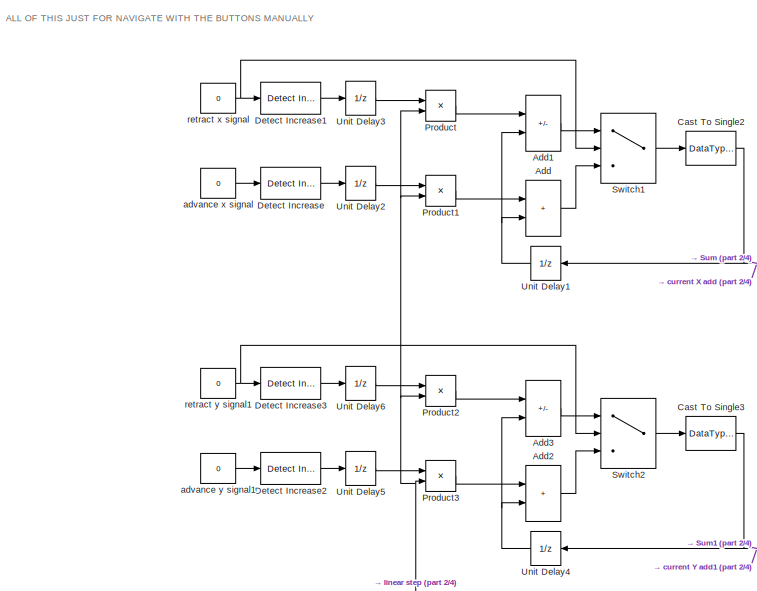
[diagram: root canvas - part 1/4, top left region]
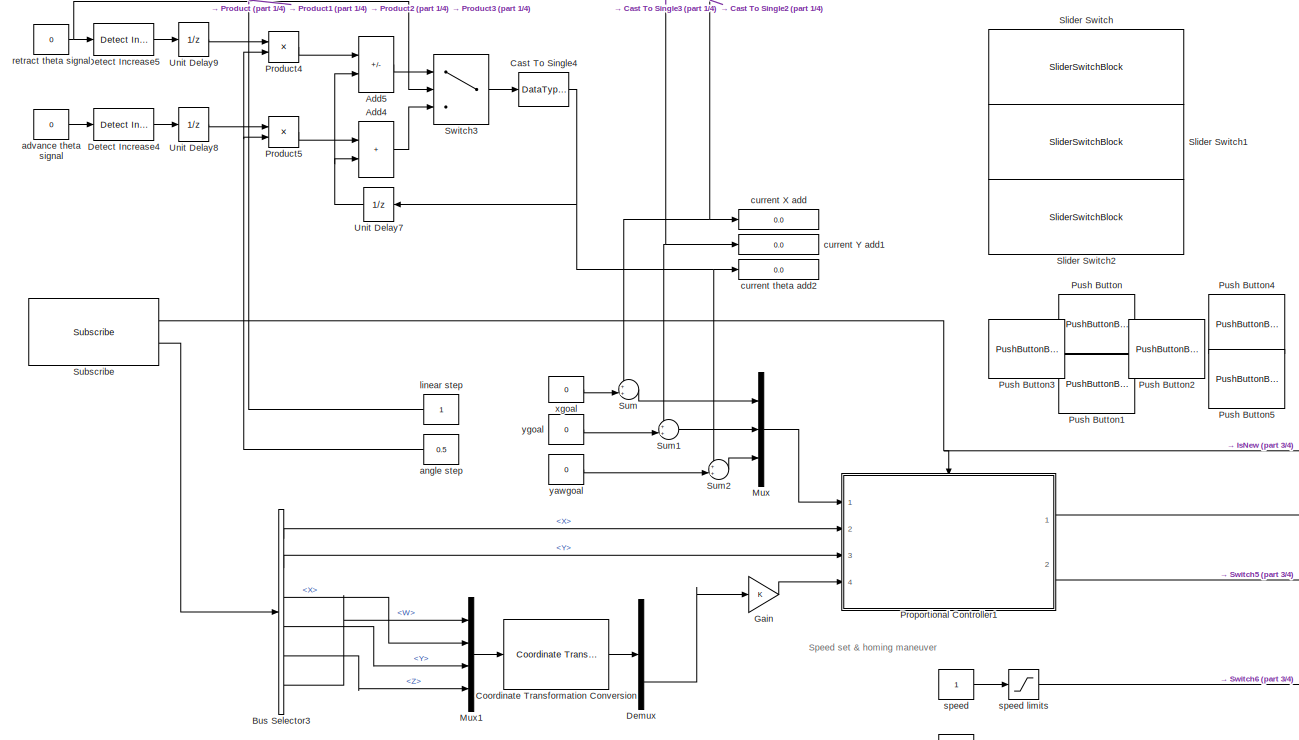
[diagram: root canvas - part 2/4, central region]
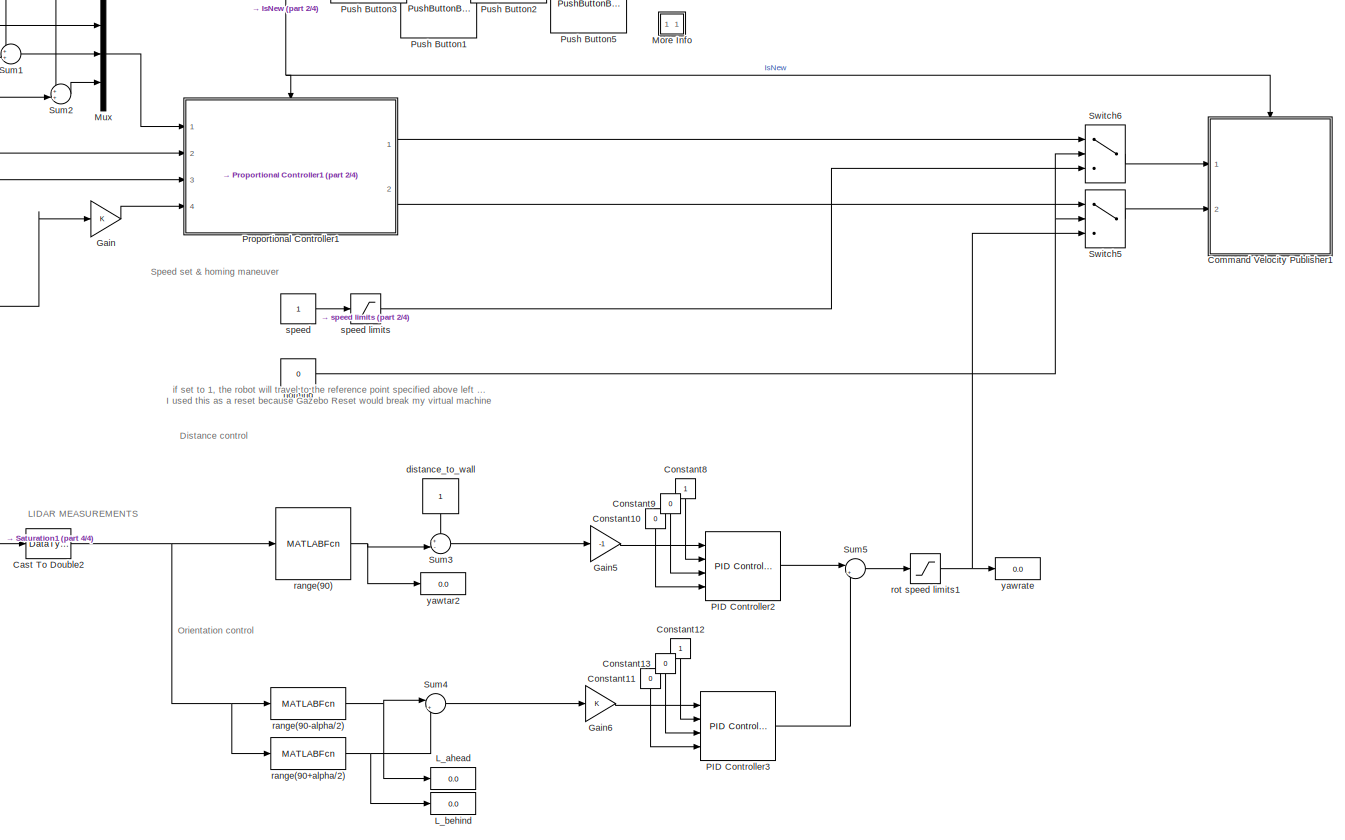
[diagram: root canvas - part 3/4, bottom right region]
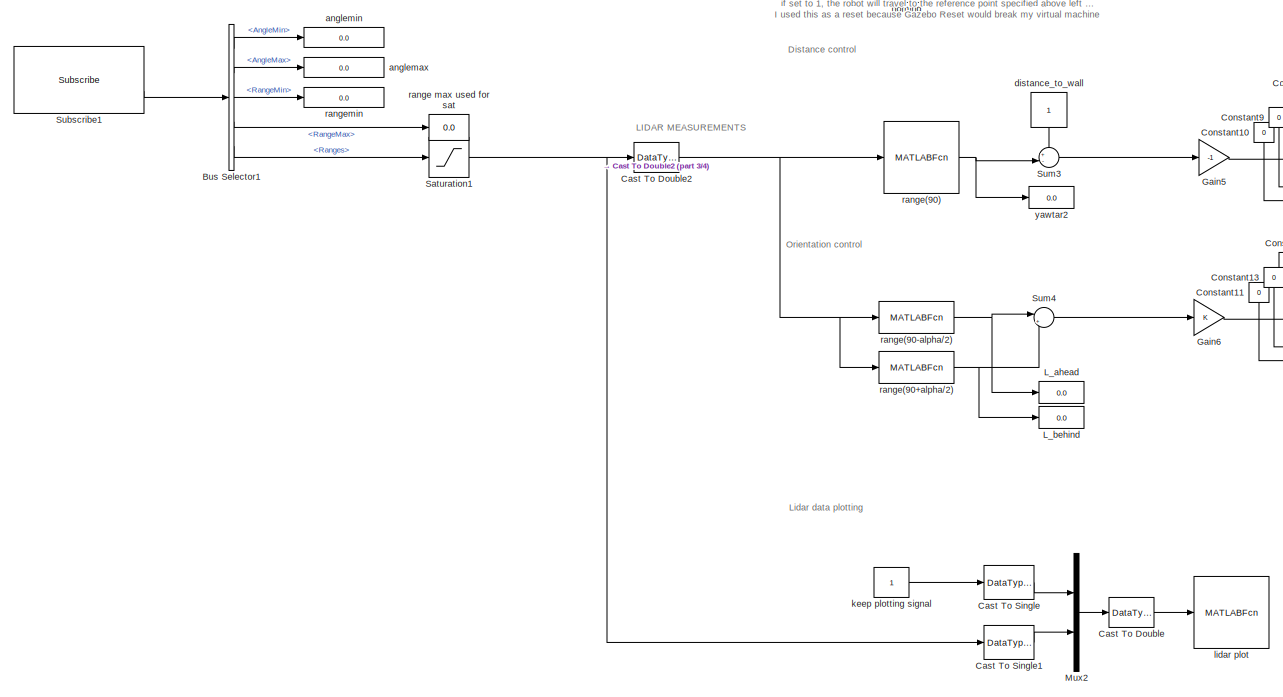
[diagram: root canvas - part 4/4, bottom center region]
MODEL slx_7248342cb240
KIND model
CONFIG AbsTol = auto
CONFIG EnableMultiTasking = off
CONFIG FixedStep = auto
CONFIG MaxStep = auto
CONFIG MinStep = auto
CONFIG RelTol = 1e-3
CONFIG SampleTimeConstraint = Unconstrained
CONFIG Solver = FixedStepAuto
CONFIG SolverName = FixedStepAuto
CONFIG StartTime = 0.0
CONFIG StopTime = inf
WORKSPACE source: mxarray member
WORKSPACE SL_ROS_VariableLengthArrays_MaxSizes: object (value not decoded)
BLOCK [Sum] Add
  IconShape = rectangular
  Ports = [2, 1]
BLOCK [Sum] Add1
  IconShape = rectangular
  Inputs = -+
  Ports = [2, 1]
BLOCK [Sum] Add2
  IconShape = rectangular
  Ports = [2, 1]
BLOCK [Sum] Add3
  IconShape = rectangular
  Inputs = -+
  Ports = [2, 1]
BLOCK [Sum] Add4
  IconShape = rectangular
  Ports = [2, 1]
BLOCK [Sum] Add5
  IconShape = rectangular
  Inputs = -+
  Ports = [2, 1]
BLOCK [BusSelector] Bus Selector1
  OutputSignals = AngleMin,AngleMax,RangeMin,RangeMax,Ranges
  Ports = [1, 5]
BLOCK [BusSelector] Bus Selector3
  OutputSignals = Pose.Pose.Position.X,Pose.Pose.Position.Y,Pose.Pose.Orientation.X,Pose.Pose.Orientation.Y,Pose.Pose.Orientation.Z,Pose.Pose.Orientation.W
  Ports = [1, 6]
BLOCK [DataTypeConversion] Cast To Double
  OutDataTypeStr = double
  RndMeth = Floor
  SaturateOnIntegerOverflow = off
BLOCK [DataTypeConversion] Cast To Double2
  OutDataTypeStr = double
  RndMeth = Floor
  SaturateOnIntegerOverflow = off
BLOCK [DataTypeConversion] Cast To Single
  OutDataTypeStr = single
  RndMeth = Floor
  SaturateOnIntegerOverflow = off
BLOCK [DataTypeConversion] Cast To Single1
  OutDataTypeStr = single
  RndMeth = Floor
  SaturateOnIntegerOverflow = off
BLOCK [DataTypeConversion] Cast To Single2
  OutDataTypeStr = single
  RndMeth = Floor
  SaturateOnIntegerOverflow = off
BLOCK [DataTypeConversion] Cast To Single3
  OutDataTypeStr = single
  RndMeth = Floor
  SaturateOnIntegerOverflow = off
BLOCK [DataTypeConversion] Cast To Single4
  OutDataTypeStr = single
  RndMeth = Floor
  SaturateOnIntegerOverflow = off
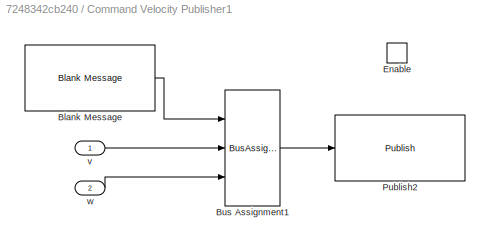
BLOCK [SubSystem] Command Velocity Publisher1
  Ports = [2, 0, 1]
  RequestExecContextInheritance = off
BLOCK [Reference] Command Velocity Publisher1/Blank Message  REF=robotlib/Blank Message
  Ports = [0, 1]
  SourceBlock = robotlib/Blank Message
  SourceProductBaseCode = RR
  SourceType = ROS Blank Message
BLOCK [BusAssignment] Command Velocity Publisher1/Bus Assignment1
  AssignedSignals = Linear.X,Angular.Z
  DialogController = Simulink.DDGSource_BusAssignment
  Ports = [3, 1]
BLOCK [EnablePort] Command Velocity Publisher1/Enable
  Ports = []
BLOCK [Reference] Command Velocity Publisher1/Publish2  REF=robotlib/Publish
  AttributesFormatString = %<messageType>
  Ports = [1]
  SourceBlock = robotlib/Publish
  SourceProductBaseCode = RR
  SourceType = ROS Publish
BLOCK [Inport] Command Velocity Publisher1/v
BLOCK [Inport] Command Velocity Publisher1/w
  Port = 2
BLOCK [Constant] Constant10
  NameLocation = left
  Value = 0
BLOCK [Constant] Constant11
  NameLocation = left
  Value = 0
BLOCK [Constant] Constant12
  NameLocation = left
BLOCK [Constant] Constant13
  NameLocation = left
  Value = 0
BLOCK [Constant] Constant8
  NameLocation = left
BLOCK [Constant] Constant9
  NameLocation = left
  Value = 0
BLOCK [Reference] Coordinate Transformation Conversion  REF=robotcorelib/Coordinate Transformation Conversion
  Ports = [1, 1]
  SourceBlock = robotcorelib/Coordinate Transformation Conversion
  SourceProductBaseCode = NV,RO,RR
  SourceType = robotics.slcore.internal.block.CoordinateTransformationConversion
BLOCK [Demux] Demux
  Outputs = 3
  Ports = [1, 3]
BLOCK [Reference] Detect Increase  REF=simulink/Logic and Bit
Operations/Detect
Increase
  Ports = [1, 1]
  SourceBlock = simulink/Logic and Bit\nOperations/Detect\nIncrease
  SourceProductBaseCode = SL
  SourceType = Detect Increase
BLOCK [Reference] Detect Increase1  REF=simulink/Logic and Bit
Operations/Detect
Increase
  Ports = [1, 1]
  SourceBlock = simulink/Logic and Bit\nOperations/Detect\nIncrease
  SourceProductBaseCode = SL
  SourceType = Detect Increase
BLOCK [Reference] Detect Increase2  REF=simulink/Logic and Bit
Operations/Detect
Increase
  Ports = [1, 1]
  SourceBlock = simulink/Logic and Bit\nOperations/Detect\nIncrease
  SourceProductBaseCode = SL
  SourceType = Detect Increase
BLOCK [Reference] Detect Increase3  REF=simulink/Logic and Bit
Operations/Detect
Increase
  Ports = [1, 1]
  SourceBlock = simulink/Logic and Bit\nOperations/Detect\nIncrease
  SourceProductBaseCode = SL
  SourceType = Detect Increase
BLOCK [Reference] Detect Increase4  REF=simulink/Logic and Bit
Operations/Detect
Increase
  Ports = [1, 1]
  SourceBlock = simulink/Logic and Bit\nOperations/Detect\nIncrease
  SourceProductBaseCode = SL
  SourceType = Detect Increase
BLOCK [Reference] Detect Increase5  REF=simulink/Logic and Bit
Operations/Detect
Increase
  Ports = [1, 1]
  SourceBlock = simulink/Logic and Bit\nOperations/Detect\nIncrease
  SourceProductBaseCode = SL
  SourceType = Detect Increase
BLOCK [Gain] Gain
BLOCK [Gain] Gain5
  Gain = -1
BLOCK [Gain] Gain6
BLOCK [Display] L_ahead
  Decimation = 1
  NameLocation = right
  Ports = [1]
BLOCK [Display] L_behind
  Decimation = 1
  NameLocation = right
  Ports = [1]
BLOCK [SubSystem] More Info
  OpenFcn = showdemo(bdroot(gcb))
  Ports = []
  RequestExecContextInheritance = off
BLOCK [Mux] Mux
  DisplayOption = bar
  Inputs = 3
  Ports = [3, 1]
BLOCK [Mux] Mux1
  DisplayOption = bar
  Ports = [4, 1]
BLOCK [Mux] Mux2
  DisplayOption = bar
  Inputs = 2
  Ports = [2, 1]
BLOCK [Reference] PID Controller2  REF=simulink/Continuous/PID Controller
  Ports = [4, 1]
  SourceBlock = simulink/Continuous/PID Controller
  SourceProductBaseCode = SL
  SourceType = PID 1dof
BLOCK [Reference] PID Controller3  REF=simulink/Continuous/PID Controller
  Ports = [4, 1]
  SourceBlock = simulink/Continuous/PID Controller
  SourceProductBaseCode = SL
  SourceType = PID 1dof
BLOCK [Product] Product
  Ports = [2, 1]
BLOCK [Product] Product1
  Ports = [2, 1]
BLOCK [Product] Product2
  Ports = [2, 1]
BLOCK [Product] Product3
  Ports = [2, 1]
BLOCK [Product] Product4
  Ports = [2, 1]
BLOCK [Product] Product5
  Ports = [2, 1]
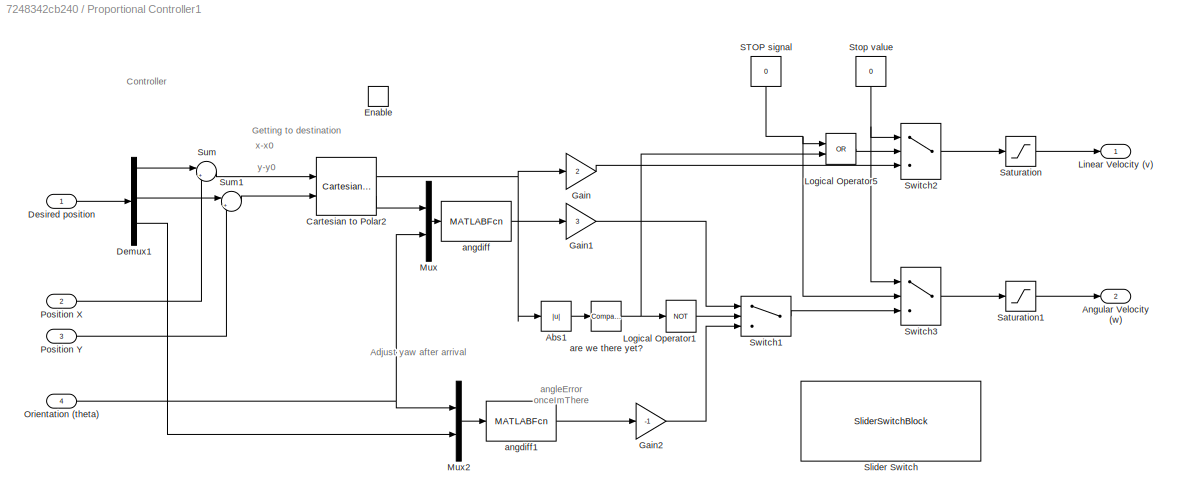
BLOCK [SubSystem] Proportional Controller1
  Ports = [4, 2, 1]
  RequestExecContextInheritance = off
BLOCK [Abs] Proportional Controller1/Abs1
  SaturateOnIntegerOverflow = off
BLOCK [Outport] Proportional Controller1/Angular Velocity (w)
  Port = 2
  VectorParamsAs1DForOutWhenUnconnected = off
BLOCK [Reference] Proportional Controller1/Cartesian to Polar2  REF=simulink_extras/Transformations/Cartesian to
Polar
  Ports = [2, 2]
  SourceBlock = simulink_extras/Transformations/Cartesian to\nPolar
  SourceProductBaseCode = SL
  SourceType = Cart2Polar
BLOCK [Demux] Proportional Controller1/Demux1
  Outputs = 3
  Ports = [1, 3]
BLOCK [Inport] Proportional Controller1/Desired position
BLOCK [EnablePort] Proportional Controller1/Enable
  Ports = []
BLOCK [Gain] Proportional Controller1/Gain
  Gain = 2
BLOCK [Gain] Proportional Controller1/Gain1
  Gain = 3
BLOCK [Gain] Proportional Controller1/Gain2
  Gain = -1
BLOCK [Outport] Proportional Controller1/Linear Velocity (v)
  VectorParamsAs1DForOutWhenUnconnected = off
BLOCK [Logic] Proportional Controller1/Logical Operator1
  AllPortsSameDT = off
  Operator = NOT
  OutDataTypeStr = boolean
  Ports = [1, 1]
BLOCK [Logic] Proportional Controller1/Logical Operator5
  AllPortsSameDT = off
  Operator = OR
  OutDataTypeStr = boolean
  Ports = [2, 1]
BLOCK [Mux] Proportional Controller1/Mux
  DisplayOption = bar
  Inputs = 2
  Ports = [2, 1]
BLOCK [Mux] Proportional Controller1/Mux2
  DisplayOption = bar
  Inputs = 2
  Ports = [2, 1]
BLOCK [Inport] Proportional Controller1/Orientation (theta)
  Port = 4
BLOCK [Inport] Proportional Controller1/Position X
  Port = 2
BLOCK [Inport] Proportional Controller1/Position Y
  Port = 3
BLOCK [Constant] Proportional Controller1/STOP signal 
  NameLocation = left
  Value = 0
BLOCK [Saturate] Proportional Controller1/Saturation
  LinearizeAsGain = off
  LowerLimit = -0.3
  UpperLimit = 0.3
BLOCK [Saturate] Proportional Controller1/Saturation1
  LinearizeAsGain = off
  LowerLimit = -999
  UpperLimit = 999
BLOCK [SliderSwitchBlock] Proportional Controller1/Slider Switch
BLOCK [Constant] Proportional Controller1/Stop value
  NameLocation = left
  Value = 0
BLOCK [Sum] Proportional Controller1/Sum
  Inputs = |+-
  Ports = [2, 1]
BLOCK [Sum] Proportional Controller1/Sum1
  Inputs = |+-
  Ports = [2, 1]
BLOCK [Switch] Proportional Controller1/Switch1
  Criteria = u2 ~= 0
  InputSameDT = off
  SaturateOnIntegerOverflow = off
BLOCK [Switch] Proportional Controller1/Switch2
  Criteria = u2 ~= 0
  InputSameDT = off
  SaturateOnIntegerOverflow = off
BLOCK [Switch] Proportional Controller1/Switch3
  Criteria = u2 ~= 0
  InputSameDT = off
  SaturateOnIntegerOverflow = off
BLOCK [MATLABFcn] Proportional Controller1/angdiff
  MATLABFcn = angdiff(u(2), u(1))
  Output1D = off
  OutputDimensions = 1
  Ports = [1, 1]
BLOCK [MATLABFcn] Proportional Controller1/angdiff1
  MATLABFcn = angdiff(u(2), u(1))
  Output1D = off
  OutputDimensions = 1
  Ports = [1, 1]
BLOCK [Reference] Proportional Controller1/are we there yet?  REF=simulink/Logic and Bit
Operations/Compare
To Constant
  NameLocation = top
  Ports = [1, 1]
  SourceBlock = simulink/Logic and Bit\nOperations/Compare\nTo Constant
  SourceProductBaseCode = SL
  SourceType = Compare To Constant
BLOCK [PushButtonBlock] Push Button
  ButtonText = X+
BLOCK [PushButtonBlock] Push Button1
  ButtonText = X-
BLOCK [PushButtonBlock] Push Button2
  ButtonText = Y+
BLOCK [PushButtonBlock] Push Button3
  ButtonText = Y-
BLOCK [PushButtonBlock] Push Button4
  ButtonText = theta+
BLOCK [PushButtonBlock] Push Button5
  ButtonText = theta-
BLOCK [Saturate] Saturation1
  LinearizeAsGain = off
  LowerLimit = -20
  UpperLimit = 3.6
BLOCK [SliderSwitchBlock] Slider Switch
BLOCK [SliderSwitchBlock] Slider Switch1
BLOCK [SliderSwitchBlock] Slider Switch2
BLOCK [Reference] Subscribe  REF=robotlib/Subscribe
  Ports = [0, 2]
  SourceBlock = robotlib/Subscribe
  SourceProductBaseCode = RR
  SourceType = ROS Subscribe
BLOCK [Reference] Subscribe1  REF=robotlib/Subscribe
  Ports = [0, 2]
  SourceBlock = robotlib/Subscribe
  SourceProductBaseCode = RR
  SourceType = ROS Subscribe
BLOCK [Sum] Sum
  Inputs = ++|
  Ports = [2, 1]
BLOCK [Sum] Sum1
  Inputs = ++|
  Ports = [2, 1]
BLOCK [Sum] Sum2
  Inputs = ++|
  Ports = [2, 1]
BLOCK [Sum] Sum3
  Inputs = +-|
  Ports = [2, 1]
BLOCK [Sum] Sum4
  Inputs = |+-
  Ports = [2, 1]
BLOCK [Sum] Sum5
  Inputs = |++
  Ports = [2, 1]
BLOCK [Switch] Switch1
  InputSameDT = off
  SaturateOnIntegerOverflow = off
  Threshold = 1
BLOCK [Switch] Switch2
  InputSameDT = off
  SaturateOnIntegerOverflow = off
  Threshold = 1
BLOCK [Switch] Switch3
  InputSameDT = off
  SaturateOnIntegerOverflow = off
  Threshold = 1
BLOCK [Switch] Switch5
  Criteria = u2 ~= 0
  InputSameDT = off
  SaturateOnIntegerOverflow = off
BLOCK [Switch] Switch6
  Criteria = u2 ~= 0
  InputSameDT = off
  SaturateOnIntegerOverflow = off
BLOCK [UnitDelay] Unit Delay1
  HasFrameUpgradeWarning = on
  NameLocation = top
  SampleTime = -1
BLOCK [UnitDelay] Unit Delay2
  HasFrameUpgradeWarning = on
  SampleTime = -1
BLOCK [UnitDelay] Unit Delay3
  HasFrameUpgradeWarning = on
  SampleTime = -1
BLOCK [UnitDelay] Unit Delay4
  HasFrameUpgradeWarning = on
  NameLocation = top
  SampleTime = -1
BLOCK [UnitDelay] Unit Delay5
  HasFrameUpgradeWarning = on
  SampleTime = -1
BLOCK [UnitDelay] Unit Delay6
  HasFrameUpgradeWarning = on
  SampleTime = -1
BLOCK [UnitDelay] Unit Delay7
  HasFrameUpgradeWarning = on
  NameLocation = top
  SampleTime = -1
BLOCK [UnitDelay] Unit Delay8
  HasFrameUpgradeWarning = on
  SampleTime = -1
BLOCK [UnitDelay] Unit Delay9
  HasFrameUpgradeWarning = on
  SampleTime = -1
BLOCK [Constant] advance theta signal
  Value = 0
BLOCK [Constant] advance x signal
  Value = 0
BLOCK [Constant] advance y signal1
  Value = 0
BLOCK [Constant] angle step
  NameLocation = right
  Value = 0.5
BLOCK [Display] anglemax
  Decimation = 1
  NameLocation = right
  Ports = [1]
BLOCK [Display] anglemin
  Decimation = 1
  NameLocation = right
  Ports = [1]
BLOCK [Display] current X add
  Decimation = 1
  NameLocation = right
  Ports = [1]
BLOCK [Display] current Y add1
  Decimation = 1
  NameLocation = right
  Ports = [1]
BLOCK [Display] current theta add2
  Decimation = 1
  NameLocation = right
  Ports = [1]
BLOCK [Constant] distance_to_wall
  NameLocation = top
BLOCK [Constant] homing
  Value = 0
BLOCK [Constant] keep plotting signal
BLOCK [MATLABFcn] lidar plot
  MATLABFcn = plot_lidar(u(1), u(2:end));
  Output1D = off
  OutputDimensions = 1
  Ports = [1, 1]
BLOCK [Constant] linear step
  NameLocation = right
BLOCK [Display] range max used for sat
  Decimation = 1
  NameLocation = top
  Ports = [1]
BLOCK [MATLABFcn] range(90)
  MATLABFcn = min(u(30:150))
  Output1D = off
  OutputDimensions = 1
  Ports = [1, 1]
BLOCK [MATLABFcn] range(90+alpha//2)
  MATLABFcn = u(91+30)
  Output1D = off
  OutputDimensions = 1
  Ports = [1, 1]
BLOCK [MATLABFcn] range(90-alpha//2)
  MATLABFcn = u(91-30)
  Output1D = off
  OutputDimensions = 1
  Ports = [1, 1]
BLOCK [Display] rangemin
  Decimation = 1
  NameLocation = right
  Ports = [1]
BLOCK [Constant] retract theta signal
  Value = 0
BLOCK [Constant] retract x signal
  Value = 0
BLOCK [Constant] retract y signal1
  Value = 0
BLOCK [Saturate] rot speed limits1
  LinearizeAsGain = off
BLOCK [Constant] speed
BLOCK [Saturate] speed limits
  LinearizeAsGain = off
  LowerLimit = -0.3
  UpperLimit = 0.3
BLOCK [Constant] xgoal
  Value = 0
BLOCK [Constant] yawgoal
  Value = 0
BLOCK [Display] yawrate
  Decimation = 1
  NameLocation = right
  Ports = [1]
BLOCK [Display] yawtar2
  Decimation = 1
  NameLocation = right
  Ports = [1]
BLOCK [Constant] ygoal
  Value = 0
ANNOTATION (root): ALL OF THIS JUST FOR NAVIGATE WITH THE BUTTONS MANUALLY
ANNOTATION (root): Distance control
ANNOTATION (root): LIDAR MEASUREMENTS
ANNOTATION (root): Lidar data plotting
ANNOTATION (root): Orientation control
ANNOTATION (root): Speed set & homing maneuver
ANNOTATION (root): if set to 1, the robot will travel to the reference point specified above left (manual control) I used this as a reset because Gazebo Reset would break my virtual machine
ANNOTATION Proportional Controller1: angleError onceImThere
ANNOTATION Proportional Controller1: Controller
ANNOTATION Proportional Controller1: Adjust yaw after arrival
ANNOTATION Proportional Controller1: Getting to destination
ANNOTATION Proportional Controller1: x-x0
ANNOTATION Proportional Controller1: y-y0
LINE Add1:1 -> Switch1:1
LINE Add2:1 -> Switch2:3
LINE Add3:1 -> Switch2:1
LINE Add4:1 -> Switch3:3
LINE Add5:1 -> Switch3:1
LINE Add:1 -> Switch1:3
LINE Bus Selector1:1 -> anglemin:1
LINE Bus Selector1:2 -> anglemax:1
LINE Bus Selector1:3 -> rangemin:1
LINE Bus Selector1:4 -> range max used for sat:1
LINE Bus Selector1:5 -> Saturation1:1
LINE Bus Selector3:1 -> Proportional Controller1:2
LINE Bus Selector3:2 -> Proportional Controller1:3
LINE Bus Selector3:3 -> Mux1:2
LINE Bus Selector3:4 -> Mux1:3
LINE Bus Selector3:5 -> Mux1:4
LINE Bus Selector3:6 -> Mux1:1
NET Cast To Double2:1 -> range(90):1, range(90+alpha//2):1, range(90-alpha//2):1
LINE Cast To Double:1 -> lidar plot:1
LINE Cast To Single1:1 -> Mux2:2
NET Cast To Single2:1 -> Sum:1, Unit Delay1:1, current X add:1
NET Cast To Single3:1 -> Sum1:1, Unit Delay4:1, current Y add1:1
NET Cast To Single4:1 -> Sum2:1, Unit Delay7:1, current theta add2:1
LINE Cast To Single:1 -> Mux2:1
LINE Command Velocity Publisher1/Blank Message:1 -> Command Velocity Publisher1/Bus Assignment1:1
LINE Command Velocity Publisher1/Bus Assignment1:1 -> Command Velocity Publisher1/Publish2:1
LINE Command Velocity Publisher1/v:1 -> Command Velocity Publisher1/Bus Assignment1:2
LINE Command Velocity Publisher1/w:1 -> Command Velocity Publisher1/Bus Assignment1:3
LINE Constant10:1 -> PID Controller2:4
LINE Constant11:1 -> PID Controller3:4
LINE Constant12:1 -> PID Controller3:2
LINE Constant13:1 -> PID Controller3:3
LINE Constant8:1 -> PID Controller2:2
LINE Constant9:1 -> PID Controller2:3
LINE Coordinate Transformation Conversion:1 -> Demux:1
LINE Demux:3 -> Gain:1
LINE Detect Increase1:1 -> Unit Delay3:1
LINE Detect Increase2:1 -> Unit Delay5:1
LINE Detect Increase3:1 -> Unit Delay6:1
LINE Detect Increase4:1 -> Unit Delay8:1
LINE Detect Increase5:1 -> Unit Delay9:1
LINE Detect Increase:1 -> Unit Delay2:1
LINE Gain5:1 -> PID Controller2:1
LINE Gain6:1 -> PID Controller3:1
LINE Gain:1 -> Proportional Controller1:4
LINE Mux1:1 -> Coordinate Transformation Conversion:1
LINE Mux2:1 -> Cast To Double:1
LINE Mux:1 -> Proportional Controller1:1
LINE PID Controller2:1 -> Sum5:1
LINE PID Controller3:1 -> Sum5:2
LINE Product1:1 -> Add:1
LINE Product2:1 -> Add3:1
LINE Product3:1 -> Add2:1
LINE Product4:1 -> Add5:1
LINE Product5:1 -> Add4:1
LINE Product:1 -> Add1:1
LINE Proportional Controller1/Abs1:1 -> Proportional Controller1/are we there yet?:1
NET Proportional Controller1/Cartesian to Polar2:1 -> Proportional Controller1/Abs1:1, Proportional Controller1/Gain:1
LINE Proportional Controller1/Cartesian to Polar2:2 -> Proportional Controller1/Mux:1
LINE Proportional Controller1/Demux1:1 -> Proportional Controller1/Sum:1
LINE Proportional Controller1/Demux1:2 -> Proportional Controller1/Sum1:1
LINE Proportional Controller1/Demux1:3 -> Proportional Controller1/Mux2:2
LINE Proportional Controller1/Desired position:1 -> Proportional Controller1/Demux1:1
LINE Proportional Controller1/Gain1:1 -> Proportional Controller1/Switch1:1
LINE Proportional Controller1/Gain2:1 -> Proportional Controller1/Switch1:3
LINE Proportional Controller1/Gain:1 -> Proportional Controller1/Switch2:3
LINE Proportional Controller1/Logical Operator1:1 -> Proportional Controller1/Switch1:2
LINE Proportional Controller1/Logical Operator5:1 -> Proportional Controller1/Switch2:2
LINE Proportional Controller1/Mux2:1 -> Proportional Controller1/angdiff1:1
LINE Proportional Controller1/Mux:1 -> Proportional Controller1/angdiff:1
NET Proportional Controller1/Orientation (theta):1 -> Proportional Controller1/Mux2:1, Proportional Controller1/Mux:2
LINE Proportional Controller1/Position X:1 -> Proportional Controller1/Sum:2
LINE Proportional Controller1/Position Y:1 -> Proportional Controller1/Sum1:2
NET Proportional Controller1/STOP signal :1 -> Proportional Controller1/Logical Operator5:1, Proportional Controller1/Switch3:2
LINE Proportional Controller1/Saturation1:1 -> Proportional Controller1/Angular Velocity (w):1
LINE Proportional Controller1/Saturation:1 -> Proportional Controller1/Linear Velocity (v):1
NET Proportional Controller1/Stop value:1 -> Proportional Controller1/Switch2:1, Proportional Controller1/Switch3:1
LINE Proportional Controller1/Sum1:1 -> Proportional Controller1/Cartesian to Polar2:2
LINE Proportional Controller1/Sum:1 -> Proportional Controller1/Cartesian to Polar2:1
LINE Proportional Controller1/Switch1:1 -> Proportional Controller1/Switch3:3
LINE Proportional Controller1/Switch2:1 -> Proportional Controller1/Saturation:1
LINE Proportional Controller1/Switch3:1 -> Proportional Controller1/Saturation1:1
LINE Proportional Controller1/angdiff1:1 -> Proportional Controller1/Gain2:1
LINE Proportional Controller1/angdiff:1 -> Proportional Controller1/Gain1:1
NET Proportional Controller1/are we there yet?:1 -> Proportional Controller1/Logical Operator1:1, Proportional Controller1/Logical Operator5:2
LINE Proportional Controller1:1 -> Switch6:1
LINE Proportional Controller1:2 -> Switch5:1
NET Saturation1:1 -> Cast To Double2:1, Cast To Single1:1
LINE Subscribe1:2 -> Bus Selector1:1
NET Subscribe:1 -> Command Velocity Publisher1:enable, Proportional Controller1:enable
LINE Subscribe:2 -> Bus Selector3:1
LINE Sum1:1 -> Mux:2
LINE Sum2:1 -> Mux:3
LINE Sum3:1 -> Gain5:1
LINE Sum4:1 -> Gain6:1
LINE Sum5:1 -> rot speed limits1:1
LINE Sum:1 -> Mux:1
LINE Switch1:1 -> Cast To Single2:1
LINE Switch2:1 -> Cast To Single3:1
LINE Switch3:1 -> Cast To Single4:1
LINE Switch5:1 -> Command Velocity Publisher1:2
LINE Switch6:1 -> Command Velocity Publisher1:1
NET Unit Delay1:1 -> Add1:2, Add:2
LINE Unit Delay2:1 -> Product1:1
LINE Unit Delay3:1 -> Product:1
NET Unit Delay4:1 -> Add2:2, Add3:2
LINE Unit Delay5:1 -> Product3:1
LINE Unit Delay6:1 -> Product2:1
NET Unit Delay7:1 -> Add4:2, Add5:2
LINE Unit Delay8:1 -> Product5:1
LINE Unit Delay9:1 -> Product4:1
LINE advance theta signal:1 -> Detect Increase4:1
LINE advance x signal:1 -> Detect Increase:1
LINE advance y signal1:1 -> Detect Increase2:1
NET angle step:1 -> Product4:2, Product5:2
LINE distance_to_wall:1 -> Sum3:1
NET homing:1 -> Switch5:2, Switch6:2
LINE keep plotting signal:1 -> Cast To Single:1
NET linear step:1 -> Product1:2, Product2:2, Product3:2, Product:2
NET range(90):1 -> Sum3:2, yawtar2:1
NET range(90+alpha//2):1 -> L_behind:1, Sum4:2
NET range(90-alpha//2):1 -> L_ahead:1, Sum4:1
NET retract theta signal:1 -> Detect Increase5:1, Switch3:2
NET retract x signal:1 -> Detect Increase1:1, Switch1:2
NET retract y signal1:1 -> Detect Increase3:1, Switch2:2
NET rot speed limits1:1 -> Switch5:3, yawrate:1
LINE speed limits:1 -> Switch6:3
LINE speed:1 -> speed limits:1
LINE xgoal:1 -> Sum:2
LINE yawgoal:1 -> Sum2:2
LINE ygoal:1 -> Sum1:2
note: NET lines group one-source signal fan-out (src -> all destinations, sorted); 1:1 wires keep LINE
